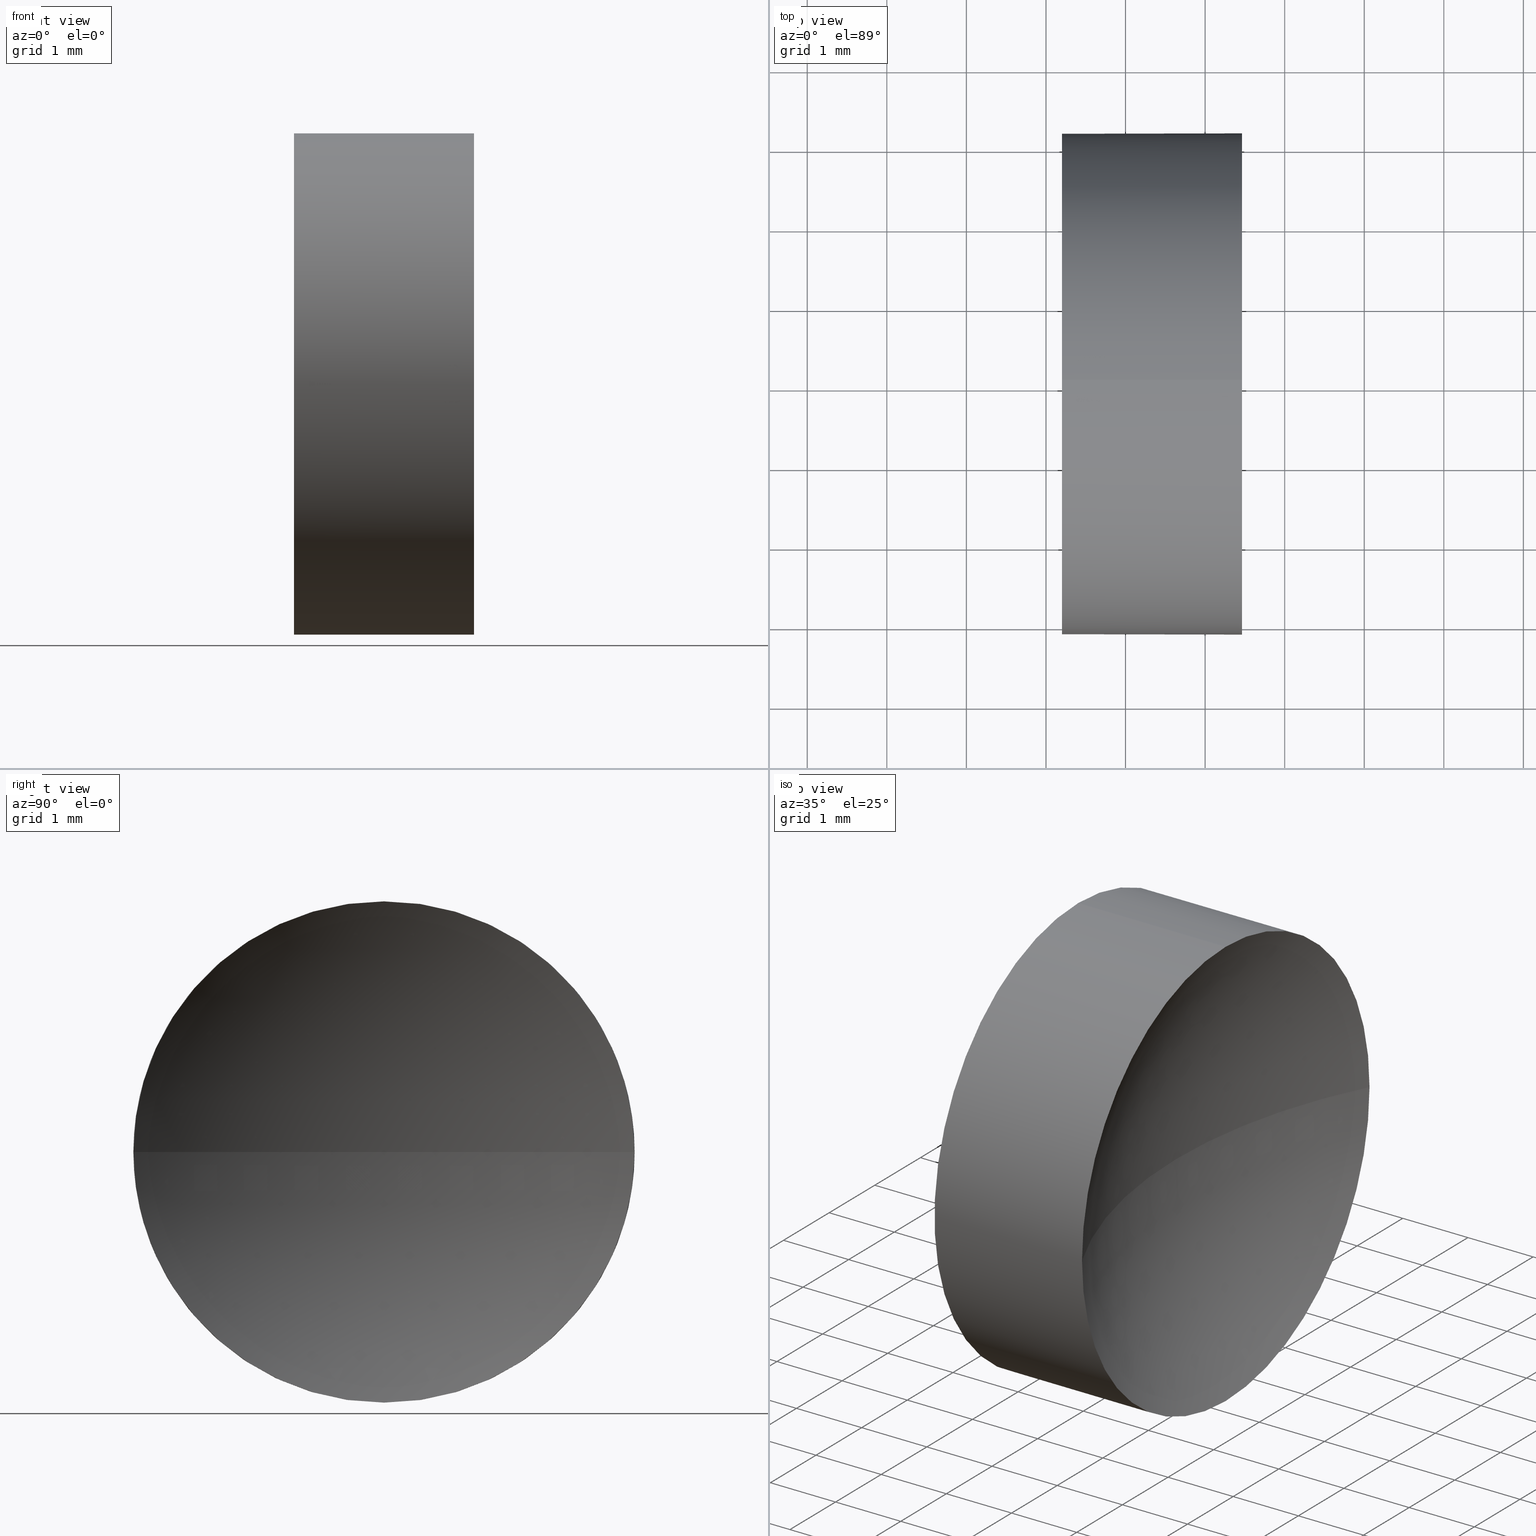
[diagram: canonical four-view strip — front | top / right | iso, engineering-drawing reading convention]
A machine part, canonical four-view strip (front | top / right | iso — engineering-drawing reading convention). The complete STEP part file that produces these views, byte-faithful:
ISO-10303-21;
HEADER;
FILE_DESCRIPTION (( 'STEP AP214' ),
    '1' );
FILE_NAME ('120246.STEP',
    '2019-06-24T06:01:53',
    ( '' ),
    ( '' ),
    'SwSTEP 2.0',
    'SolidWorks 2016',
    '' );
FILE_SCHEMA (( 'AUTOMOTIVE_DESIGN' ));
ENDSEC;

DATA;
#1 = EDGE_CURVE ( 'NONE', #61, #14, #114, .T. ) ;
#2 = DIRECTION ( 'NONE',  ( 1.000000000000000000, 0.0000000000000000000, 0.0000000000000000000 ) ) ;
#3 = CARTESIAN_POINT ( 'NONE',  ( 21.15647192244426100, 13.03112609140304000, 3.149999999999998100 ) ) ;
#4 = PRESENTATION_LAYER_ASSIGNMENT (  '', '', ( #174 ) ) ;
#5 = ORIENTED_EDGE ( 'NONE', *, *, #107, .F. ) ;
#6 = PRESENTATION_STYLE_ASSIGNMENT (( #93 ) ) ;
#7 = DIRECTION ( 'NONE',  ( -1.000000000000000000, -0.0000000000000000000, -0.0000000000000000000 ) ) ;
#8 = ADVANCED_FACE ( 'NONE', ( #108 ), #39, .T. ) ;
#9 = EDGE_CURVE ( 'NONE', #129, #145, #72, .T. ) ;
#10 = PRODUCT_RELATED_PRODUCT_CATEGORY ( 'part', '', ( #162 ) ) ;
#11 = ORIENTED_EDGE ( 'NONE', *, *, #144, .F. ) ;
#12 = DIRECTION ( 'NONE',  ( -1.000000000000000000, -0.0000000000000000000, -0.0000000000000000000 ) ) ;
#13 = DIRECTION ( 'NONE',  ( 0.0000000000000000000, 0.0000000000000000000, 1.000000000000000000 ) ) ;
#14 = VERTEX_POINT ( 'NONE', #81 ) ;
#15 = DIRECTION ( 'NONE',  ( 0.0000000000000000000, 0.0000000000000000000, 1.000000000000000000 ) ) ;
#16 = CYLINDRICAL_SURFACE ( 'NONE', #143, 3.149999999999998100 ) ;
#17 = SURFACE_STYLE_USAGE ( .BOTH. , #45 ) ;
#18 = ORIENTED_EDGE ( 'NONE', *, *, #70, .T. ) ;
#19 = UNCERTAINTY_MEASURE_WITH_UNIT (LENGTH_MEASURE( 1.000000000000000100E-005 ), #141, 'distance_accuracy_value', 'NONE');
#20 = SURFACE_SIDE_STYLE ('',( #33 ) ) ;
#21 = ADVANCED_FACE ( 'NONE', ( #164 ), #77, .F. ) ;
#22 = CIRCLE ( 'NONE', #74, 3.149999999999998100 ) ;
#23 = ADVANCED_FACE ( 'NONE', ( #142 ), #87, .F. ) ;
#24 = ADVANCED_FACE ( 'NONE', ( #175 ), #54, .F. ) ;
#25 = EDGE_LOOP ( 'NONE', ( #91, #127 ) ) ;
#26 = CARTESIAN_POINT ( 'NONE',  ( 24.46435373033985200, 13.03112609140304000, 0.0000000000000000000 ) ) ;
#27 = ORIENTED_EDGE ( 'NONE', *, *, #94, .T. ) ;
#28 = CARTESIAN_POINT ( 'NONE',  ( 22.20087548928661300, 13.03112609140304000, 0.0000000000000000000 ) ) ;
#29 =( LENGTH_UNIT ( ) NAMED_UNIT ( * ) SI_UNIT ( .MILLI., .METRE. ) );
#30 = CARTESIAN_POINT ( 'NONE',  ( 24.46435373033985200, 13.03112609140304000, 0.0000000000000000000 ) ) ;
#31 = VERTEX_POINT ( 'NONE', #41 ) ;
#32 = CARTESIAN_POINT ( 'NONE',  ( 24.46435373033985200, 13.03112609140304000, -3.149999999999998100 ) ) ;
#33 = SURFACE_STYLE_FILL_AREA ( #105 ) ;
#34 = APPLICATION_CONTEXT ( 'automotive_design' ) ;
#35 = CARTESIAN_POINT ( 'NONE',  ( 30.58088052256434300, 13.03112609140304200, 0.0000000000000000000 ) ) ;
#36 = VECTOR ( 'NONE', #101, 1000.000000000000000 ) ;
#37 = DIRECTION ( 'NONE',  ( 0.0000000000000000000, 0.0000000000000000000, 1.000000000000000000 ) ) ;
#38 = FILL_AREA_STYLE_COLOUR ( '', #53 ) ;
#39 = CYLINDRICAL_SURFACE ( 'NONE', #123, 3.149999999999998100 ) ;
#40 = CIRCLE ( 'NONE', #95, 3.149999999999998100 ) ;
#41 = CARTESIAN_POINT ( 'NONE',  ( 23.70088052256434400, 13.03112609140304200, 0.0000000000000000000 ) ) ;
#42 = DIRECTION ( 'NONE',  ( 0.0000000000000000000, 0.0000000000000000000, 1.000000000000000000 ) ) ;
#43 = CARTESIAN_POINT ( 'NONE',  ( 0.0000000000000000000, 0.0000000000000000000, 0.0000000000000000000 ) ) ;
#44 = AXIS2_PLACEMENT_3D ( 'NONE', #28, #153, #56 ) ;
#45 = SURFACE_SIDE_STYLE ('',( #157 ) ) ;
#46 = ORIENTED_EDGE ( 'NONE', *, *, #144, .T. ) ;
#47 = CIRCLE ( 'NONE', #78, 6.880000000000000800 ) ;
#48 = VERTEX_POINT ( 'NONE', #152 ) ;
#49 = PRESENTATION_STYLE_ASSIGNMENT (( #17 ) ) ;
#50 = LINE ( 'NONE', #88, #92 ) ;
#51 = FILL_AREA_STYLE ('',( #38 ) ) ;
#52 = ORIENTED_EDGE ( 'NONE', *, *, #80, .T. ) ;
#53 = COLOUR_RGB ( '',1.000000000000000000, 1.000000000000000000, 1.000000000000000000 ) ;
#54 = PLANE ( 'NONE',  #146 ) ;
#55 =( GEOMETRIC_REPRESENTATION_CONTEXT ( 3 ) GLOBAL_UNCERTAINTY_ASSIGNED_CONTEXT ( ( #185 ) ) GLOBAL_UNIT_ASSIGNED_CONTEXT ( ( #118, #178, #166 ) ) REPRESENTATION_CONTEXT ( 'NONE', 'WORKASPACE' ) );
#56 = DIRECTION ( 'NONE',  ( 0.0000000000000000000, 0.0000000000000000000, 1.000000000000000000 ) ) ;
#57 = DIRECTION ( 'NONE',  ( -1.000000000000000000, -0.0000000000000000000, -0.0000000000000000000 ) ) ;
#58 = MECHANICAL_DESIGN_GEOMETRIC_PRESENTATION_REPRESENTATION (  '', ( #174 ), #66 ) ;
#59 = PRODUCT_DEFINITION_SHAPE ( 'NONE', 'NONE',  #147 ) ;
#60 = DIRECTION ( 'NONE',  ( 0.0000000000000000000, -1.000000000000000000, -1.224646799147353200E-016 ) ) ;
#61 = VERTEX_POINT ( 'NONE', #115 ) ;
#62 = DIRECTION ( 'NONE',  ( 0.0000000000000000000, 0.0000000000000000000, 1.000000000000000000 ) ) ;
#63 = EDGE_LOOP ( 'NONE', ( #168, #183, #86, #82, #170 ) ) ;
#64 = MANIFOLD_SOLID_BREP ( '��ת1', #112 ) ;
#65 = ORIENTED_EDGE ( 'NONE', *, *, #103, .F. ) ;
#66 =( GEOMETRIC_REPRESENTATION_CONTEXT ( 3 ) GLOBAL_UNCERTAINTY_ASSIGNED_CONTEXT ( ( #171 ) ) GLOBAL_UNIT_ASSIGNED_CONTEXT ( ( #29, #179, #155 ) ) REPRESENTATION_CONTEXT ( 'NONE', 'WORKASPACE' ) );
#67 = CARTESIAN_POINT ( 'NONE',  ( 24.46435373033985200, 9.881126091403043400, 0.0000000000000000000 ) ) ;
#68 = CARTESIAN_POINT ( 'NONE',  ( 30.58088052256434300, 13.03112609140304200, 0.0000000000000000000 ) ) ;
#69 = DIRECTION ( 'NONE',  ( 0.0000000000000000000, 0.0000000000000000000, -1.000000000000000000 ) ) ;
#70 = EDGE_CURVE ( 'NONE', #48, #129, #22, .T. ) ;
#71 = AXIS2_PLACEMENT_3D ( 'NONE', #43, #62, #182 ) ;
#72 = CIRCLE ( 'NONE', #109, 3.149999999999998100 ) ;
#73 =( NAMED_UNIT ( * ) PLANE_ANGLE_UNIT ( ) SI_UNIT ( $, .RADIAN. ) );
#74 = AXIS2_PLACEMENT_3D ( 'NONE', #169, #135, #121 ) ;
#75 = ORIENTED_EDGE ( 'NONE', *, *, #94, .F. ) ;
#76 = COLOUR_RGB ( '',1.000000000000000000, 1.000000000000000000, 1.000000000000000000 ) ;
#77 = SPHERICAL_SURFACE ( 'NONE', #159, 6.880000000000000800 ) ;
#78 = AXIS2_PLACEMENT_3D ( 'NONE', #165, #69, #85 ) ;
#79 = EDGE_LOOP ( 'NONE', ( #18, #184, #160, #5, #52 ) ) ;
#80 = EDGE_CURVE ( 'NONE', #177, #48, #113, .T. ) ;
#81 = CARTESIAN_POINT ( 'NONE',  ( 22.20087548928661300, 13.03112609140304000, -3.149999999999998100 ) ) ;
#82 = ORIENTED_EDGE ( 'NONE', *, *, #107, .T. ) ;
#83 = DIRECTION ( 'NONE',  ( 0.0000000000000000000, -1.000000000000000000, 0.0000000000000000000 ) ) ;
#84 = DIRECTION ( 'NONE',  ( -1.000000000000000000, -0.0000000000000000000, -0.0000000000000000000 ) ) ;
#85 = DIRECTION ( 'NONE',  ( -1.000000000000000000, 0.0000000000000000000, 0.0000000000000000000 ) ) ;
#86 = ORIENTED_EDGE ( 'NONE', *, *, #103, .T. ) ;
#87 = SPHERICAL_SURFACE ( 'NONE', #167, 6.880000000000000800 ) ;
#88 = CARTESIAN_POINT ( 'NONE',  ( 21.15647192244426100, 13.03112609140304000, -3.149999999999998100 ) ) ;
#89 = CARTESIAN_POINT ( 'NONE',  ( 24.46435373033985200, 13.03112609140304000, 0.0000000000000000000 ) ) ;
#90 = APPLICATION_PROTOCOL_DEFINITION ( 'draft international standard', 'automotive_design', 1998, #119 ) ;
#91 = ORIENTED_EDGE ( 'NONE', *, *, #1, .T. ) ;
#92 = VECTOR ( 'NONE', #57, 1000.000000000000000 ) ;
#93 = SURFACE_STYLE_USAGE ( .BOTH. , #20 ) ;
#94 = EDGE_CURVE ( 'NONE', #145, #31, #47, .T. ) ;
#95 = AXIS2_PLACEMENT_3D ( 'NONE', #30, #7, #133 ) ;
#96 = ORIENTED_EDGE ( 'NONE', *, *, #9, .F. ) ;
#97 = DIRECTION ( 'NONE',  ( -1.000000000000000000, -0.0000000000000000000, -0.0000000000000000000 ) ) ;
#98 = DIRECTION ( 'NONE',  ( -1.000000000000000000, -0.0000000000000000000, -0.0000000000000000000 ) ) ;
#99 = DIRECTION ( 'NONE',  ( 0.0000000000000000000, 0.0000000000000000000, -1.000000000000000000 ) ) ;
#100 = AXIS2_PLACEMENT_3D ( 'NONE', #110, #98, #15 ) ;
#101 = DIRECTION ( 'NONE',  ( -1.000000000000000000, -0.0000000000000000000, -0.0000000000000000000 ) ) ;
#102 = CARTESIAN_POINT ( 'NONE',  ( 24.46435373033985200, 13.03112609140304000, 3.149999999999998100 ) ) ;
#103 = EDGE_CURVE ( 'NONE', #145, #177, #40, .T. ) ;
#104 = DIRECTION ( 'NONE',  ( 0.0000000000000000000, -1.224646799147353200E-016, 1.000000000000000000 ) ) ;
#105 = FILL_AREA_STYLE ('',( #154 ) ) ;
#106 = SHAPE_DEFINITION_REPRESENTATION ( #59, #131 ) ;
#107 = EDGE_CURVE ( 'NONE', #177, #61, #139, .T. ) ;
#108 = FACE_OUTER_BOUND ( 'NONE', #79, .T. ) ;
#109 = AXIS2_PLACEMENT_3D ( 'NONE', #26, #97, #176 ) ;
#110 = CARTESIAN_POINT ( 'NONE',  ( 22.20087548928661300, 13.03112609140304000, 0.0000000000000000000 ) ) ;
#111 = AXIS2_PLACEMENT_3D ( 'NONE', #68, #104, #60 ) ;
#112 = CLOSED_SHELL ( 'NONE', ( #8, #23, #21, #161, #24 ) ) ;
#113 = CIRCLE ( 'NONE', #120, 3.149999999999998100 ) ;
#114 = CIRCLE ( 'NONE', #100, 3.149999999999998100 ) ;
#115 = CARTESIAN_POINT ( 'NONE',  ( 22.20087548928661300, 13.03112609140304000, 3.149999999999998100 ) ) ;
#116 = PRODUCT_DEFINITION_FORMATION_WITH_SPECIFIED_SOURCE ( '�κ�', '', #162, .NOT_KNOWN. ) ;
#117 = DIRECTION ( 'NONE',  ( 0.0000000000000000000, 0.0000000000000000000, 1.000000000000000000 ) ) ;
#118 =( LENGTH_UNIT ( ) NAMED_UNIT ( * ) SI_UNIT ( .MILLI., .METRE. ) );
#119 = APPLICATION_CONTEXT ( 'automotive_design' ) ;
#120 = AXIS2_PLACEMENT_3D ( 'NONE', #89, #84, #117 ) ;
#121 = DIRECTION ( 'NONE',  ( 0.0000000000000000000, 0.0000000000000000000, 1.000000000000000000 ) ) ;
#122 = CIRCLE ( 'NONE', #44, 3.149999999999998100 ) ;
#123 = AXIS2_PLACEMENT_3D ( 'NONE', #132, #12, #13 ) ;
#124 = PRODUCT_CONTEXT ( 'NONE', #119, 'mechanical' ) ;
#125 = STYLED_ITEM ( 'NONE', ( #6 ), #131 ) ;
#126 = MECHANICAL_DESIGN_GEOMETRIC_PRESENTATION_REPRESENTATION (  '', ( #125 ), #128 ) ;
#127 = ORIENTED_EDGE ( 'NONE', *, *, #150, .T. ) ;
#128 =( GEOMETRIC_REPRESENTATION_CONTEXT ( 3 ) GLOBAL_UNCERTAINTY_ASSIGNED_CONTEXT ( ( #19 ) ) GLOBAL_UNIT_ASSIGNED_CONTEXT ( ( #141, #73, #172 ) ) REPRESENTATION_CONTEXT ( 'NONE', 'WORKASPACE' ) );
#129 = VERTEX_POINT ( 'NONE', #32 ) ;
#130 = CARTESIAN_POINT ( 'NONE',  ( 30.58088052256434300, 13.03112609140304200, 0.0000000000000000000 ) ) ;
#131 = ADVANCED_BREP_SHAPE_REPRESENTATION ( '120246', ( #64, #71 ), #55 ) ;
#132 = CARTESIAN_POINT ( 'NONE',  ( 21.15647192244426100, 13.03112609140304000, 0.0000000000000000000 ) ) ;
#133 = DIRECTION ( 'NONE',  ( 0.0000000000000000000, 0.0000000000000000000, 1.000000000000000000 ) ) ;
#134 = CIRCLE ( 'NONE', #111, 6.880000000000000800 ) ;
#135 = DIRECTION ( 'NONE',  ( -1.000000000000000000, -0.0000000000000000000, -0.0000000000000000000 ) ) ;
#136 = PRESENTATION_LAYER_ASSIGNMENT (  '', '', ( #125 ) ) ;
#137 = CARTESIAN_POINT ( 'NONE',  ( 21.15647192244426100, 13.03112609140304000, 0.0000000000000000000 ) ) ;
#138 = EDGE_CURVE ( 'NONE', #129, #14, #50, .T. ) ;
#139 = LINE ( 'NONE', #3, #36 ) ;
#140 = EDGE_LOOP ( 'NONE', ( #180, #46, #75, #96 ) ) ;
#141 =( LENGTH_UNIT ( ) NAMED_UNIT ( * ) SI_UNIT ( .MILLI., .METRE. ) );
#142 = FACE_OUTER_BOUND ( 'NONE', #140, .T. ) ;
#143 = AXIS2_PLACEMENT_3D ( 'NONE', #137, #158, #42 ) ;
#144 = EDGE_CURVE ( 'NONE', #48, #31, #134, .T. ) ;
#145 = VERTEX_POINT ( 'NONE', #67 ) ;
#146 = AXIS2_PLACEMENT_3D ( 'NONE', #148, #2, #99 ) ;
#147 = PRODUCT_DEFINITION ( 'δ֪', '', #116, #163 ) ;
#148 = CARTESIAN_POINT ( 'NONE',  ( 22.20087548928661300, 13.03112609140304000, 0.0000000000000000000 ) ) ;
#149 = DIRECTION ( 'NONE',  ( 0.0000000000000000000, 0.0000000000000000000, 1.000000000000000000 ) ) ;
#150 = EDGE_CURVE ( 'NONE', #14, #61, #122, .T. ) ;
#151 = DIRECTION ( 'NONE',  ( 0.0000000000000000000, -1.000000000000000000, 0.0000000000000000000 ) ) ;
#152 = CARTESIAN_POINT ( 'NONE',  ( 24.46435373033985200, 16.18112609140303700, 3.857637417314159200E-016 ) ) ;
#153 = DIRECTION ( 'NONE',  ( -1.000000000000000000, -0.0000000000000000000, -0.0000000000000000000 ) ) ;
#154 = FILL_AREA_STYLE_COLOUR ( '', #76 ) ;
#155 =( NAMED_UNIT ( * ) SI_UNIT ( $, .STERADIAN. ) SOLID_ANGLE_UNIT ( ) );
#156 = EDGE_LOOP ( 'NONE', ( #11, #186, #65, #27 ) ) ;
#157 = SURFACE_STYLE_FILL_AREA ( #51 ) ;
#158 = DIRECTION ( 'NONE',  ( -1.000000000000000000, -0.0000000000000000000, -0.0000000000000000000 ) ) ;
#159 = AXIS2_PLACEMENT_3D ( 'NONE', #35, #149, #151 ) ;
#160 = ORIENTED_EDGE ( 'NONE', *, *, #1, .F. ) ;
#161 = ADVANCED_FACE ( 'NONE', ( #173 ), #16, .T. ) ;
#162 = PRODUCT ( '120246', '120246', '', ( #124 ) ) ;
#163 = PRODUCT_DEFINITION_CONTEXT ( 'detailed design', #34, 'design' ) ;
#164 = FACE_OUTER_BOUND ( 'NONE', #156, .T. ) ;
#165 = CARTESIAN_POINT ( 'NONE',  ( 30.58088052256434300, 13.03112609140304200, 0.0000000000000000000 ) ) ;
#166 =( NAMED_UNIT ( * ) SI_UNIT ( $, .STERADIAN. ) SOLID_ANGLE_UNIT ( ) );
#167 = AXIS2_PLACEMENT_3D ( 'NONE', #130, #37, #83 ) ;
#168 = ORIENTED_EDGE ( 'NONE', *, *, #138, .F. ) ;
#169 = CARTESIAN_POINT ( 'NONE',  ( 24.46435373033985200, 13.03112609140304000, 0.0000000000000000000 ) ) ;
#170 = ORIENTED_EDGE ( 'NONE', *, *, #150, .F. ) ;
#171 = UNCERTAINTY_MEASURE_WITH_UNIT (LENGTH_MEASURE( 1.000000000000000100E-005 ), #29, 'distance_accuracy_value', 'NONE');
#172 =( NAMED_UNIT ( * ) SI_UNIT ( $, .STERADIAN. ) SOLID_ANGLE_UNIT ( ) );
#173 = FACE_OUTER_BOUND ( 'NONE', #63, .T. ) ;
#174 = STYLED_ITEM ( 'NONE', ( #49 ), #64 ) ;
#175 = FACE_OUTER_BOUND ( 'NONE', #25, .T. ) ;
#176 = DIRECTION ( 'NONE',  ( 0.0000000000000000000, 0.0000000000000000000, 1.000000000000000000 ) ) ;
#177 = VERTEX_POINT ( 'NONE', #102 ) ;
#178 =( NAMED_UNIT ( * ) PLANE_ANGLE_UNIT ( ) SI_UNIT ( $, .RADIAN. ) );
#179 =( NAMED_UNIT ( * ) PLANE_ANGLE_UNIT ( ) SI_UNIT ( $, .RADIAN. ) );
#180 = ORIENTED_EDGE ( 'NONE', *, *, #70, .F. ) ;
#181 = APPLICATION_PROTOCOL_DEFINITION ( 'draft international standard', 'automotive_design', 1998, #34 ) ;
#182 = DIRECTION ( 'NONE',  ( 1.000000000000000000, 0.0000000000000000000, 0.0000000000000000000 ) ) ;
#183 = ORIENTED_EDGE ( 'NONE', *, *, #9, .T. ) ;
#184 = ORIENTED_EDGE ( 'NONE', *, *, #138, .T. ) ;
#185 = UNCERTAINTY_MEASURE_WITH_UNIT (LENGTH_MEASURE( 1.000000000000000100E-005 ), #118, 'distance_accuracy_value', 'NONE');
#186 = ORIENTED_EDGE ( 'NONE', *, *, #80, .F. ) ;
ENDSEC;
END-ISO-10303-21;
